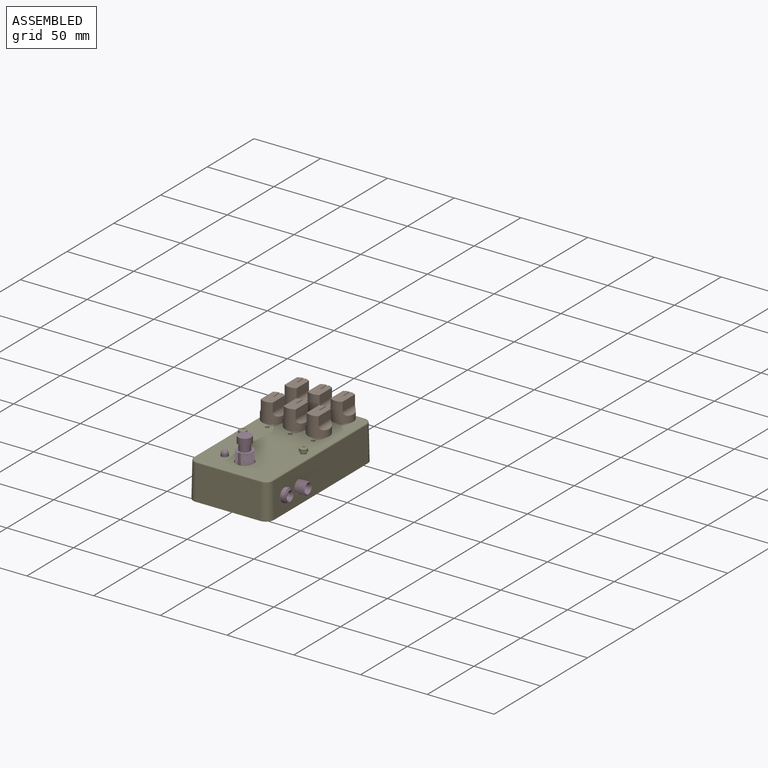
[diagram: assembled view]
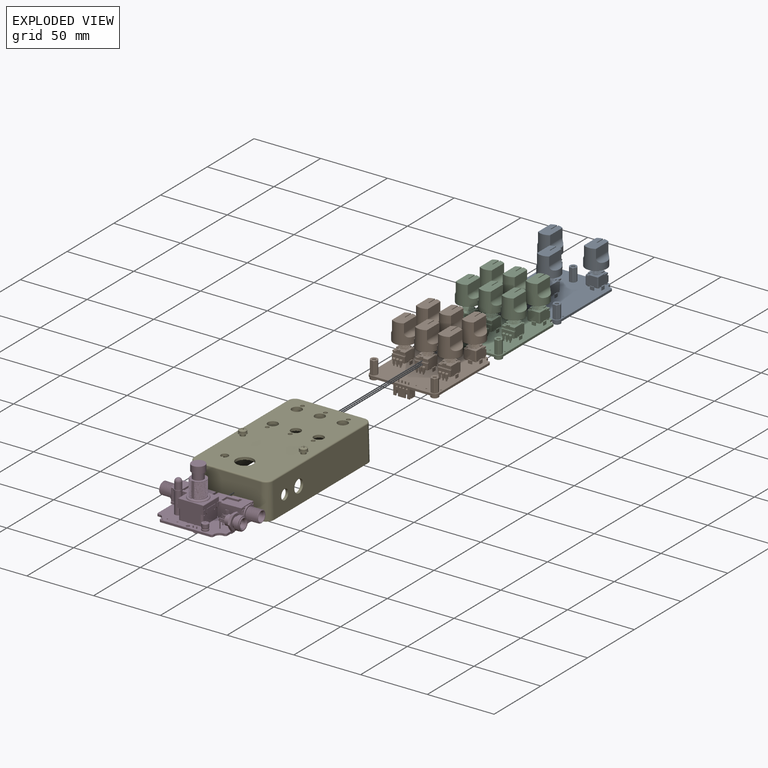
[diagram: exploded view]
GUIDED TOUR — FREECAD ASSEMBLY "BaseRaw"

This assembly has 5 components, labeled P0..P4 below (a component is one placed body or linked part; the same part can appear more than once), held together by 0 modeled joints plus 7 derived contact edges. A joint is a constraint between two components; its type names the relative motion it leaves free:
  CONTACT — a derived adjacency edge — the two components touch in the source model (clearance under 2% of the assembly's diagonal); it is measured from the geometry, not a modeled constraint.
Axis/direction vectors are unit vectors and 'through' points are millimeter coordinates, both in the assembly's world frame.

MATES
  1. CONTACT "contact_0_1": P0 <-> P1, contact direction (0.000, -1.000, 0.000) through (23.27, 47.41, 15.00) mm (derived from contact, not a modeled constraint)
  2. CONTACT "contact_0_2": P0 <-> P2, contact direction (0.000, -1.000, 0.000) through (24.33, -7.71, 13.40) mm (derived from contact, not a modeled constraint)
  3. CONTACT "contact_0_4": P0 <-> P4, contact direction (0.000, -1.000, 0.000) through (-21.89, 47.98, 24.97) mm (derived from contact, not a modeled constraint)
  4. CONTACT "contact_1_2": P1 <-> P2, contact direction (0.000, 1.000, 0.000) through (-24.00, 47.30, 13.40) mm (derived from contact, not a modeled constraint)
  5. CONTACT "contact_1_4": P1 <-> P4, contact direction (0.000, -1.000, 0.000) through (-2.08, 13.22, 25.00) mm (derived from contact, not a modeled constraint)
  6. CONTACT "contact_2_4": P2 <-> P4, contact direction (0.000, -1.000, 0.000) through (-19.58, 39.19, 24.99) mm (derived from contact, not a modeled constraint)
  7. CONTACT "contact_3_4": P3 <-> P4, contact direction (0.000, 1.000, 0.000) through (27.98, -34.65, 12.30) mm (derived from contact, not a modeled constraint)

ASSEMBLY ORDER
  1. P4 — the base component [order heuristic]
  2. P0 [order heuristic]
  3. P1 [order heuristic]
  4. P2 [order heuristic]
  5. P3 [order heuristic]
Order-tag legend:
  [order heuristic] — this assembly is geometrically interlocked (no collision-free removal order exists), so components are listed in mate-graph order; insertion feasibility is not verified.

Of the 5 components, 2 carry a construction recipe — the FreeCAD feature program (sketches with constraints, then the solid features that consume them) that regenerates the part from scratch, quoted from this document or from the linked companion document it references; the rest are supplied as boundary geometry only. The tour below walks the components in assembly order: each is shown spotlighted twice — in the assembled view, then in the exploded view, where a leader line traces a displaced component back to its assembled socket (components that stay in place when exploded have no leader line; saturated green if recipe-attached, orange if geometry-only; every other component desaturated gray) — followed by its recipe or geometry summary and the mates that hold it.
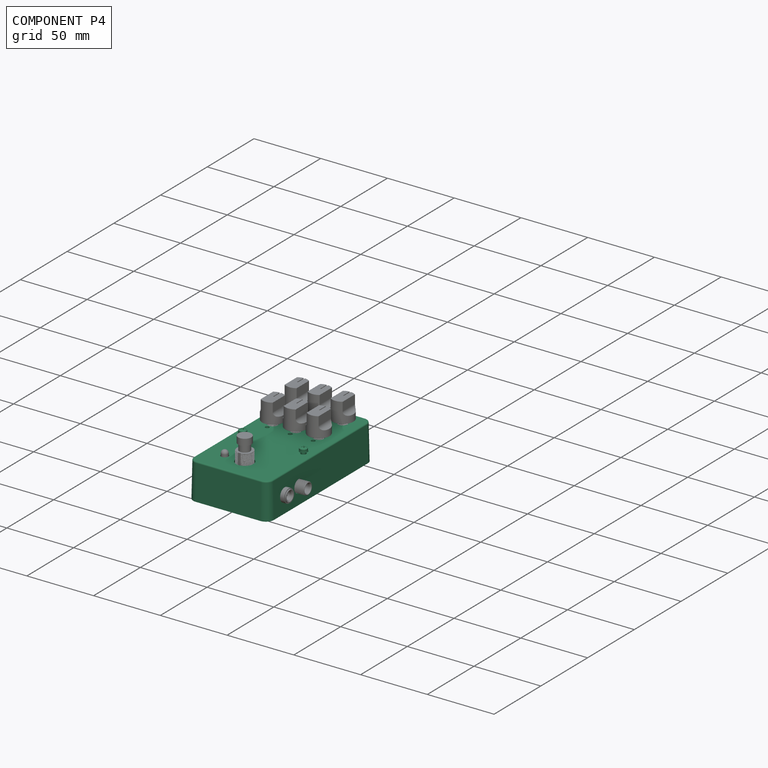
[diagram: component P4 — assembled]
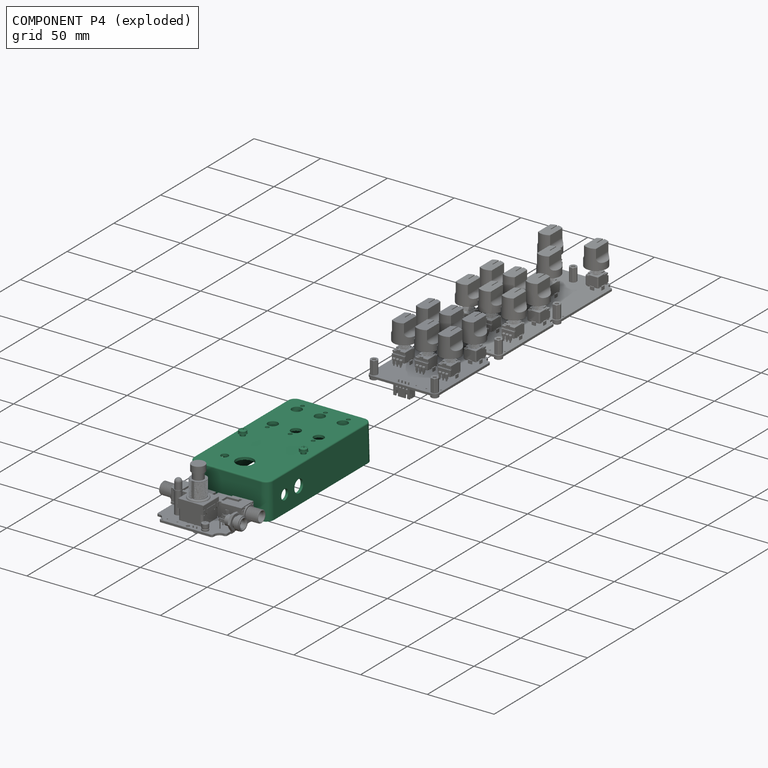
[diagram: component P4 — exploded]
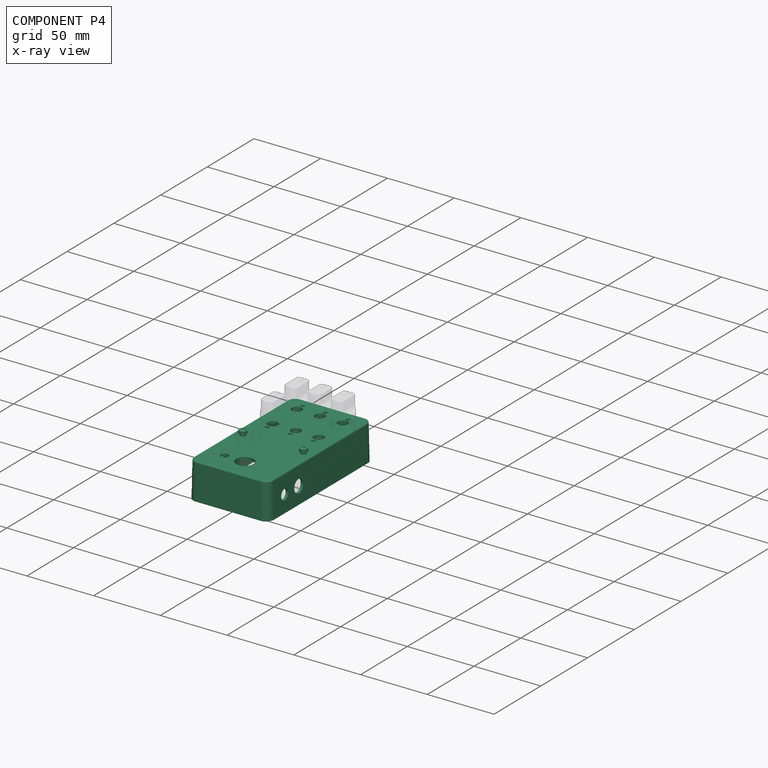
[diagram: component P4 — x-ray view]
COMPONENT P4 — recipe-attached ("Case_1590B", modeled in this document).
Held by: resting contact with P0 (derived edge); resting contact with P1 (derived edge); resting contact with P2 (derived edge); resting contact with P3 (derived edge).
Construction recipe (the document's own serialized feature program — sketch geometry with constraints, then the solid features built on it; lengths are millimeters unless a unit is written):

FEATURE [PartDesign::FeatureBase] BaseFeature
  BaseFeature = -> Part__Feature006
FEATURE [Sketcher::SketchObject] Sketch001
  FullyConstrained = true
  MapMode = 5
  Placement = pos=(0,0,-25) rot=(0,0,1;0rad)
  Support = -> [BaseFeature]
  sketch-geometry (4):
    g0: LineSegment StartX=0 StartY=-20 StartZ=0 EndX=45 EndY=-20 EndZ=0
    g1: LineSegment StartX=45 StartY=-20 StartZ=0 EndX=45 EndY=20 EndZ=0
    g2: LineSegment StartX=45 StartY=20 StartZ=0 EndX=0 EndY=20 EndZ=0
    g3: LineSegment StartX=0 StartY=20 StartZ=0 EndX=0 EndY=-20 EndZ=0
  constraints (11):
    c: Coincident(g0,g1)
    c: Coincident(g1,g2)
    c: Coincident(g2,g3)
    c: Coincident(g3,g0)
    c: Horizontal(g0)
    c: Horizontal(g2)
    c: Vertical(g3)
    c: PointOnObject(g2,g-2)
    c: Symmetric(g1,g0,g-1)
    c: DistanceX(g2,g2) = 45
    c: DistanceY(g1,g1) = 40
FEATURE [PartDesign::Pocket] Pocket  label="RemoveText"
  BaseFeature = -> BaseFeature
  Direction = (0,0,-1)
  Length = 5
  Length2 = 5
  Profile = -> Sketch001
  ReferenceAxis = -> Sketch001 [N_Axis]
  Refine = true
  Reversed = true
  Type = 0
FEATURE [Sketcher::SketchObject] Sketch005
  ExternalGeometry = -> [Pocket]
  FullyConstrained = true
  MapMode = 5
  Placement = pos=(0,0,-27) rot=(1,0,0;3.14159rad)
  Support = -> [Pocket]
  sketch-geometry (2):
    g0: Circle CenterX=-38.3 CenterY=0 CenterZ=0 NormalX=0 NormalY=0 NormalZ=1 AngleXU=0 Radius=6.5
    g1: Circle CenterX=-38.3 CenterY=15 CenterZ=0 NormalX=0 NormalY=0 NormalZ=1 AngleXU=0 Radius=2.75
  constraints (6):
    c: PointOnObject(g0,g-1)
    c: Diameter(g0) = 13
    c: DistanceX(g-3,g0) = 15.75
    c: Diameter(g1) = 5.5
    c: Vertical(g0,g1)
    c: DistanceY(g0,g1) = 15
FEATURE [PartDesign::Pocket] Pocket001  label="FootswitchLed"
  BaseFeature = -> Pocket
  Direction = (0,0,1)
  Length = 5
  Length2 = 5
  Profile = -> Sketch005
  ReferenceAxis = -> Sketch005 [N_Axis]
  Refine = true
  Type = 1
FEATURE [Sketcher::SketchObject] Sketch006
  ExternalGeometry = -> [Pocket001]
  FullyConstrained = true
  MapMode = 5
  Placement = pos=(0,-30.2356,-0.659743) rot=(1,0,0;1.59261rad)
  Support = -> [Pocket001]
  sketch-geometry (1):
    g0: Circle CenterX=-23.3 CenterY=-11.888 CenterZ=0 NormalX=0 NormalY=0 NormalZ=1 AngleXU=0 Radius=4.75
  constraints (3):
    c: Diameter(g0) = 9.5
    c: DistanceX(g-3,g0) = 15
    c: DistanceY(g0,g-1) = 11.888
FEATURE [PartDesign::Pocket] Pocket002  label="Output"
  BaseFeature = -> Pocket001
  Direction = (0,0.999762,0.0218149)
  Length = 5
  Length2 = 5
  Profile = -> Sketch006
  ReferenceAxis = -> Sketch006 [N_Axis]
  Refine = true
  Type = 0
FEATURE [PartDesign::Mirrored] Mirrored002  label="Input"
  BaseFeature = -> Pocket002
  MirrorPlane = -> XZ_Plane008
  Originals = -> [Pocket002]
  Refine = true
FEATURE [Sketcher::SketchObject] Sketch007
  ExternalGeometry = -> [Mirrored002]
  FullyConstrained = true
  MapMode = 5
  Placement = pos=(0,30.2356,-0.659743) rot=(0,0.714778,0.699352;3.14159rad)
  Support = -> [Mirrored002]
  sketch-geometry (1):
    g0: Circle CenterX=38.3 CenterY=-11.888 CenterZ=0 NormalX=0 NormalY=0 NormalZ=1 AngleXU=0 Radius=3.75
  constraints (3):
    c: Vertical(g0,g-3)
    c: DistanceY(g0,g-1) = 11.888
    c: Diameter(g0) = 7.5
FEATURE [PartDesign::Pocket] Pocket003  label="Power"
  BaseFeature = -> Mirrored002
  Direction = (0,-0.999762,0.0218149)
  Length = 5
  Length2 = 5
  Profile = -> Sketch007
  ReferenceAxis = -> Sketch007 [N_Axis]
  Refine = true
  Type = 0
FEATURE [Sketcher::SketchObject] Sketch017
  ExternalGeometry = -> [Pocket003]
  FullyConstrained = true
  MapMode = 5
  Placement = pos=(0,0,-27) rot=(1,0,0;3.14159rad)
  Support = -> [Pocket003]
  sketch-geometry (22):
    g0: Circle CenterX=16.39 CenterY=0 CenterZ=0 NormalX=0 NormalY=0 NormalZ=1 AngleXU=0 Radius=3.75
    g1: Circle CenterX=42.03 CenterY=17.2 CenterZ=0 NormalX=0 NormalY=0 NormalZ=1 AngleXU=0 Radius=3.75
    g2: Circle CenterX=42.03 CenterY=-17.2 CenterZ=0 NormalX=0 NormalY=0 NormalZ=1 AngleXU=0 Radius=3.75
    g3: Circle CenterX=16.39 CenterY=-17.2 CenterZ=0 NormalX=0 NormalY=0 NormalZ=1 AngleXU=0 Radius=3.1
    g4: LineSegment StartX=51.795 StartY=17.5 StartZ=0 EndX=51.795 EndY=-17.5 EndZ=0
    g5: Circle CenterX=10.39 CenterY=0 CenterZ=0 NormalX=0 NormalY=0 NormalZ=1 AngleXU=0 Radius=1.5
    g6: Circle CenterX=48.03 CenterY=17.2 CenterZ=0 NormalX=0 NormalY=0 NormalZ=1 AngleXU=0 Radius=1.5
    g7: Circle CenterX=48.03 CenterY=-17.2 CenterZ=0 NormalX=0 NormalY=0 NormalZ=1 AngleXU=0 Radius=1.5
    g8: LineSegment StartX=42.03 StartY=17.2 StartZ=0 EndX=48.03 EndY=17.2 EndZ=0
    g9: LineSegment StartX=42.03 StartY=-17.2 StartZ=0 EndX=48.03 EndY=-17.2 EndZ=0
    g10: LineSegment StartX=10.39 StartY=0 StartZ=0 EndX=16.39 EndY=0 EndZ=0
    g11: Circle CenterX=42.03 CenterY=0 CenterZ=0 NormalX=0 NormalY=0 NormalZ=1 AngleXU=0 Radius=3.75
    g12: Circle CenterX=48.03 CenterY=0 CenterZ=0 NormalX=0 NormalY=0 NormalZ=1 AngleXU=0 Radius=1.5
    g13: Circle CenterX=16.39 CenterY=17.2 CenterZ=0 NormalX=0 NormalY=0 NormalZ=1 AngleXU=0 Radius=3.75
    g14: Circle CenterX=10.39 CenterY=17.2 CenterZ=0 NormalX=0 NormalY=0 NormalZ=1 AngleXU=0 Radius=1.5
    g15: Circle CenterX=16.39 CenterY=-17.2 CenterZ=0 NormalX=0 NormalY=0 NormalZ=1 AngleXU=0 Radius=3.75
    g16: Circle CenterX=10.39 CenterY=-17.2 CenterZ=0 NormalX=0 NormalY=0 NormalZ=1 AngleXU=0 Radius=1.5
    g17: Circle CenterX=16.39 CenterY=17.2 CenterZ=0 NormalX=0 NormalY=0 NormalZ=1 AngleXU=0 Radius=3.1
    g18: Circle CenterX=42.03 CenterY=17.2 CenterZ=0 NormalX=0 NormalY=0 NormalZ=1 AngleXU=0 Radius=3.1
    g19: Circle CenterX=42.03 CenterY=0 CenterZ=0 NormalX=0 NormalY=0 NormalZ=1 AngleXU=0 Radius=3.1
    g20: Circle CenterX=16.39 CenterY=0 CenterZ=0 NormalX=0 NormalY=0 NormalZ=1 AngleXU=0 Radius=3.1
    g21: Circle CenterX=42.03 CenterY=-17.2 CenterZ=0 NormalX=0 NormalY=0 NormalZ=1 AngleXU=0 Radius=3.1
  constraints (56):
    c: PointOnObject(g0,g-1)
    c: Equal(g0,g1)
    c: Equal(g1,g2)
    c: Symmetric(g2,g1,g-1)
    c: Diameter(g3) = 6.2
    c: Diameter(g0) = 7.5
    c: DistanceY(g-1,g1) = 17.2
    c: Symmetric(g4,g4,g-1)
    c: DistanceY(g4,g4) = 35
    c: DistanceX(g-1,g4) = 51.795
    c: DistanceX(g1,g4) = 9.765
    c: DistanceX(g0,g4) = 35.405
    c: PointOnObject(g5,g-1)
    c: Equal(g5,g7)
    c: Equal(g7,g6)
    c: Horizontal(g6,g1)
    c: Horizontal(g7,g2)
    c: Coincident(g8,g1)
    c: Coincident(g8,g6)
    c: Coincident(g9,g2)
    c: Coincident(g9,g7)
    c: Coincident(g10,g5)
    c: Coincident(g10,g0)
    c: Diameter(g5) = 3
    c: PointOnObject(g11,g-1)
    c: PointOnObject(g12,g-1)
    c: Equal(g5,g12)
    c: Equal(g0,g11)
    c: Coincident(g17,g13)
    c: Coincident(g18,g1)
    c: Coincident(g19,g11)
    c: Coincident(g20,g0)
    c: Coincident(g21,g2)
    c: Coincident(g3,g15)
    c: Horizontal(g16,g15)
    c: Horizontal(g2,g16)
    c: Horizontal(g13,g14)
    c: Horizontal(g1,g14)
    c: Equal(g14,g6)
    c: Equal(g13,g0)
    c: Equal(g15,g0)
    c: Equal(g3,g20)
    c: Equal(g20,g17)
    c: Equal(g17,g18)
    c: Equal(g18,g19)
    c: Equal(g19,g21)
    c: Vertical(g0,g15)
    c: Vertical(g16,g5)
    c: Vertical(g14,g5)
    c: Vertical(g13,g0)
    c: Vertical(g11,g1)
    c: Vertical(g12,g6)
    c: Equal(g5,g16)
    c: DistanceX(g9,g9) = 6
    c: Vertical(g6,g7)
    c: DistanceX(g10,g10) = 6
FEATURE [PartDesign::Pocket] Pocket007  label="Controls"
  BaseFeature = -> Pocket003
  Direction = (0,0,1)
  Length = 5
  Length2 = 5
  Profile = -> Sketch017
  ReferenceAxis = -> Sketch017 [N_Axis]
  Refine = true
  Type = 0
FEATURE [PartDesign::Plane] DatumPlane004  label="CaseTop"
  AttachmentOffset = pos=(0,0,27) rot=(0,0,1;0rad)
  Length = 128.893
  MapMode = 5
  Placement = pos=(0,0,-27) rot=(0,1,0;3.14159rad)
  ResizeMode = 0
  Support = -> [XY_Plane008]
  Width = 76.9927
FEATURE [Sketcher::SketchObject] Sketch019
  FullyConstrained = true
  MapMode = 5
  Placement = pos=(0,0,-27) rot=(0,1,0;3.14159rad)
  Support = -> [DatumPlane004]
  sketch-geometry (3):
    g0: Circle CenterX=7.95 CenterY=22.75 CenterZ=0 NormalX=0 NormalY=0 NormalZ=1 AngleXU=0 Radius=2
    g1: Circle CenterX=7.95 CenterY=-22.75 CenterZ=0 NormalX=0 NormalY=0 NormalZ=1 AngleXU=0 Radius=2
    g2: Circle CenterX=-42.035 CenterY=0 CenterZ=0 NormalX=0 NormalY=0 NormalZ=1 AngleXU=0 Radius=2
  constraints (8):
    c: Symmetric(g1,g0,g-1)
    c: Diameter(g0) = 4
    c: DistanceY(g-1,g0) = 22.75
    c: DistanceX(g-1,g0) = 7.95
    c: Equal(g1,g0)
    c: PointOnObject(g2,g-1)
    c: DistanceX(g2,g0) = 49.985
    c: Equal(g0,g2)
FEATURE [PartDesign::Pocket] Pocket008  label="Mounts"
  BaseFeature = -> Pocket007
  Direction = (0,0,1)
  Length = 5
  Length2 = 5
  Profile = -> Sketch019
  ReferenceAxis = -> Sketch019 [N_Axis]
  Refine = true
  Type = 0
FEATURE [PartDesign::Body] Body001  label="Case"
  BaseFeature = -> Part__Feature006
  Group = -> [BaseFeature,Sketch001,Pocket,Sketch005,Pocket001,Sketch006,Pocket002,Mirrored002,Sketch007,Pocket003,Sketch017,Pocket007,DatumPlane004,Sketch019,Pocket008]
  Origin = -> Origin008
  Placement = pos=(0,0,0) rot=(-1,0,0;1.5708rad)
  Tip = -> Pocket008
FEATURE [Sketcher::SketchObject] Sketch060  label="Bot"
  FullyConstrained = true
  MapMode = 5
  Placement = pos=(0,0,0) rot=(1,0,0;1.5708rad)
  Support = -> [XZ_Plane076]
  sketch-geometry (10):
    g0: LineSegment StartX=-56.3 StartY=-30.35 StartZ=0 EndX=-56.3 EndY=30.35 EndZ=0
    g1: LineSegment StartX=-56.3 StartY=30.35 StartZ=0 EndX=56.3 EndY=30.35 EndZ=0
    g2: LineSegment StartX=56.3 StartY=30.35 StartZ=0 EndX=56.3 EndY=-30.35 EndZ=0
    g3: LineSegment StartX=56.3 StartY=-30.35 StartZ=0 EndX=-56.3 EndY=-30.35 EndZ=0
    g4: GeomPoint X=0 Y=0 Z=0
    g5: LineSegment StartX=-57.3 StartY=-31.35 StartZ=0 EndX=-57.3 EndY=31.35 EndZ=0
    g6: LineSegment StartX=-57.3 StartY=31.35 StartZ=0 EndX=57.3 EndY=31.35 EndZ=0
    g7: LineSegment StartX=57.3 StartY=31.35 StartZ=0 EndX=57.3 EndY=-31.35 EndZ=0
    g8: LineSegment StartX=57.3 StartY=-31.35 StartZ=0 EndX=-57.3 EndY=-31.35 EndZ=0
    g9: GeomPoint X=0 Y=0 Z=0
  constraints (24):
    c: Coincident(g0,g1)
    c: Coincident(g1,g2)
    c: Coincident(g2,g3)
    c: Coincident(g3,g0)
    c: Horizontal(g1)
    c: Horizontal(g3)
    c: Vertical(g0)
    c: Vertical(g2)
    c: Symmetric(g1,g0,g4)
    c: Coincident(g4,g-1)
    c: Coincident(g5,g6)
    c: Coincident(g6,g7)
    c: Coincident(g7,g8)
    c: Coincident(g8,g5)
    c: Horizontal(g6)
    c: Horizontal(g8)
    c: Vertical(g5)
    c: Vertical(g7)
    c: Symmetric(g6,g5,g9)
    c: Coincident(g9,g4)
    c: DistanceY(g2,g2) = 60.7
    c: DistanceX(g3,g3) = 112.6
    c: DistanceY(g7,g2) = 1
    c: DistanceX(g2,g7) = 1
FEATURE [PartDesign::Plane] DatumPlane014  label="Top"
  AttachmentOffset = pos=(0,0,28) rot=(0,0,1;0rad)
  Length = 131.553
  MapMode = 5
  Placement = pos=(0,-28,-6.2e-15) rot=(1,0,0;1.5708rad)
  ResizeMode = 0
  Support = -> [XZ_Plane076]
  Width = 79.6534
FEATURE [Sketcher::SketchObject] Sketch061  label="Top001"
  FullyConstrained = true
  MapMode = 5
  Placement = pos=(0,-28,-6.2e-15) rot=(1,0,0;1.5708rad)
  Support = -> [DatumPlane014]
  sketch-geometry (10):
    g0: LineSegment StartX=-55.689 StartY=-29.739 StartZ=0 EndX=-55.689 EndY=29.739 EndZ=0
    g1: LineSegment StartX=-55.689 StartY=29.739 StartZ=0 EndX=55.689 EndY=29.739 EndZ=0
    g2: LineSegment StartX=55.689 StartY=29.739 StartZ=0 EndX=55.689 EndY=-29.739 EndZ=0
    g3: LineSegment StartX=55.689 StartY=-29.739 StartZ=0 EndX=-55.689 EndY=-29.739 EndZ=0
    g4: GeomPoint X=0 Y=0 Z=0
    g5: LineSegment StartX=-56.689 StartY=-30.739 StartZ=0 EndX=-56.689 EndY=30.739 EndZ=0
    g6: LineSegment StartX=-56.689 StartY=30.739 StartZ=0 EndX=56.689 EndY=30.739 EndZ=0
    g7: LineSegment StartX=56.689 StartY=30.739 StartZ=0 EndX=56.689 EndY=-30.739 EndZ=0
    g8: LineSegment StartX=56.689 StartY=-30.739 StartZ=0 EndX=-56.689 EndY=-30.739 EndZ=0
    g9: GeomPoint X=0 Y=0 Z=0
  constraints (24):
    c: Coincident(g0,g1)
    c: Coincident(g1,g2)
    c: Coincident(g2,g3)
    c: Coincident(g3,g0)
    c: Horizontal(g1)
    c: Horizontal(g3)
    c: Vertical(g0)
    c: Vertical(g2)
    c: Symmetric(g1,g0,g4)
    c: Coincident(g4,g-1)
    c: Coincident(g5,g6)
    c: Coincident(g6,g7)
    c: Coincident(g7,g8)
    c: Coincident(g8,g5)
    c: Horizontal(g6)
    c: Horizontal(g8)
    c: Vertical(g5)
    c: Vertical(g7)
    c: Symmetric(g6,g5,g9)
    c: Coincident(g9,g4)
    c: DistanceY(g7,g2) = 1
    c: DistanceX(g2,g7) = 1
    c: DistanceY(g2,g2) = 59.478
    c: DistanceX(g1,g1) = 111.378
FEATURE [PartDesign::AdditiveLoft] AdditiveLoft
  Closed = false
  Placement = pos=(0,0,0) rot=(1,0,0;1.5708rad)
  Profile = -> Sketch060
  Refine = true
  Ruled = false
  Sections = -> [Sketch061]
FEATURE [PartDesign::Plane] DatumPlane015
  AttachmentOffset = pos=(0,0,27.1) rot=(0,0,1;0rad)
  Length = 131.553
  MapMode = 5
  Placement = pos=(0,-27.1,-6e-15) rot=(1,0,0;1.5708rad)
  ResizeMode = 0
  Support = -> [XZ_Plane076]
  Width = 79.6534
FEATURE [Sketcher::SketchObject] Sketch062
  FullyConstrained = true
  MapMode = 5
  Placement = pos=(0,-27.1,-6e-15) rot=(1,0,0;1.5708rad)
  Support = -> [DatumPlane015]
  sketch-geometry (5):
    g0: LineSegment StartX=-56.3 StartY=-30.35 StartZ=0 EndX=-56.3 EndY=30.35 EndZ=0
    g1: LineSegment StartX=-56.3 StartY=30.35 StartZ=0 EndX=56.3 EndY=30.35 EndZ=0
    g2: LineSegment StartX=56.3 StartY=30.35 StartZ=0 EndX=56.3 EndY=-30.35 EndZ=0
    g3: LineSegment StartX=56.3 StartY=-30.35 StartZ=0 EndX=-56.3 EndY=-30.35 EndZ=0
    g4: GeomPoint X=0 Y=0 Z=0
  constraints (12):
    c: Coincident(g0,g1)
    c: Coincident(g1,g2)
    c: Coincident(g2,g3)
    c: Coincident(g3,g0)
    c: Horizontal(g1)
    c: Horizontal(g3)
    c: Vertical(g0)
    c: Vertical(g2)
    c: Symmetric(g1,g0,g4)
    c: Coincident(g4,g-1)
    c: DistanceY(g2,g2) = 60.7
    c: DistanceX(g1,g1) = 112.6
FEATURE [PartDesign::Pad] Pad022
  BaseFeature = -> AdditiveLoft
  Direction = (0,-1,-2e-16)
  Length = 0.9
  Length2 = 10
  Placement = pos=(0,0,0) rot=(1,0,0;1.5708rad)
  Profile = -> Sketch062
  ReferenceAxis = -> Sketch062 [N_Axis]
  Refine = true
  Type = 0
FEATURE [Sketcher::SketchObject] Sketch063
  FullyConstrained = true
  MapMode = 5
  Placement = pos=(0,-28,1.29e-14) rot=(1,0,0;1.5708rad)
  Support = -> [Pad022]
  sketch-geometry (16):
    g0: Circle CenterX=16.39 CenterY=0 CenterZ=0 NormalX=0 NormalY=0 NormalZ=1 AngleXU=0 Radius=0.75
    g1: Circle CenterX=10.39 CenterY=0 CenterZ=0 NormalX=0 NormalY=0 NormalZ=1 AngleXU=0 Radius=0.75
    g2: Circle CenterX=10.39 CenterY=-17.2 CenterZ=0 NormalX=0 NormalY=0 NormalZ=1 AngleXU=0 Radius=0.75
    g3: Circle CenterX=48.03 CenterY=-17.2 CenterZ=0 NormalX=0 NormalY=0 NormalZ=1 AngleXU=0 Radius=0.75
    g4: Circle CenterX=48.03 CenterY=0 CenterZ=0 NormalX=0 NormalY=0 NormalZ=1 AngleXU=0 Radius=0.75
    g5: Circle CenterX=48.03 CenterY=17.2 CenterZ=0 NormalX=0 NormalY=0 NormalZ=1 AngleXU=0 Radius=0.75
    g6: Circle CenterX=10.39 CenterY=17.2 CenterZ=0 NormalX=0 NormalY=0 NormalZ=1 AngleXU=0 Radius=0.75
    g7: Circle CenterX=16.39 CenterY=17.2 CenterZ=0 NormalX=0 NormalY=0 NormalZ=1 AngleXU=0 Radius=0.75
    g8: Circle CenterX=42.03 CenterY=17.2 CenterZ=0 NormalX=0 NormalY=0 NormalZ=1 AngleXU=0 Radius=0.75
    g9: Circle CenterX=42.03 CenterY=0 CenterZ=0 NormalX=0 NormalY=0 NormalZ=1 AngleXU=0 Radius=0.75
    g10: Circle CenterX=42.03 CenterY=-17.2 CenterZ=0 NormalX=0 NormalY=0 NormalZ=1 AngleXU=0 Radius=0.75
    g11: Circle CenterX=16.39 CenterY=-17.2 CenterZ=0 NormalX=0 NormalY=0 NormalZ=1 AngleXU=0 Radius=0.75
    g12: Circle CenterX=-7.95 CenterY=22.75 CenterZ=0 NormalX=0 NormalY=0 NormalZ=1 AngleXU=0 Radius=0.75
    g13: Circle CenterX=-7.95 CenterY=-22.75 CenterZ=0 NormalX=0 NormalY=0 NormalZ=1 AngleXU=0 Radius=0.75
    g14: Circle CenterX=-38.3 CenterY=0 CenterZ=0 NormalX=0 NormalY=0 NormalZ=1 AngleXU=0 Radius=0.75
    g15: Circle CenterX=-38.3 CenterY=15 CenterZ=0 NormalX=0 NormalY=0 NormalZ=1 AngleXU=0 Radius=0.75
  constraints (46):
    c: PointOnObject(g0,g-1)
    c: PointOnObject(g1,g-1)
    c: PointOnObject(g4,g-1)
    c: PointOnObject(g9,g-1)
    c: Horizontal(g7,g6)
    c: Horizontal(g6,g8)
    c: Horizontal(g8,g5)
    c: Horizontal(g11,g2)
    c: Horizontal(g2,g10)
    c: Horizontal(g10,g3)
    c: Vertical(g3,g4)
    c: Vertical(g4,g5)
    c: Vertical(g8,g9)
    c: Vertical(g9,g10)
    c: Vertical(g2,g1)
    c: Vertical(g1,g6)
    c: Vertical(g11,g0)
    c: Equal(g7,g6)
    c: Equal(g6,g8)
    c: Equal(g8,g5)
    c: Equal(g5,g0)
    c: Equal(g0,g1)
    c: Equal(g1,g2)
    c: Equal(g2,g3)
    c: Equal(g3,g4)
    c: Equal(g4,g9)
    c: Equal(g9,g10)
    c: Equal(g10,g11)
    c: DistanceX(g-1,g0) = 16.39
    c: DistanceX(g9,g4) = 6
    c: DistanceX(g-1,g10) = 42.03
    c: Symmetric(g7,g11,g-1)
    c: DistanceY(g-1,g7) = 17.2
    c: PointOnObject(g14,g-1)
    c: Symmetric(g12,g13,g-1)
    c: Equal(g14,g15)
    c: Equal(g15,g12)
    c: Equal(g12,g13)
    c: Equal(g13,g0)
    c: DistanceX(g12,g-1) = 7.95
    c: DistanceY(g-1,g12) = 22.75
    c: Vertical(g15,g14)
    c: DistanceX(g14,g-1) = 38.3
    c: DistanceY(g14,g15) = 15
    c: Diameter(g14) = 1.5
    c: DistanceX(g1,g0) = 6
FEATURE [PartDesign::Pocket] Pocket036
  BaseFeature = -> Pad022
  Direction = (0,1,-4e-16)
  Length = 5
  Length2 = 5
  Placement = pos=(0,0,0) rot=(1,0,0;1.5708rad)
  Profile = -> Sketch063
  ReferenceAxis = -> Sketch063 [N_Axis]
  Refine = true
  Type = 0
FEATURE [Sketcher::SketchObject] Sketch064
  FullyConstrained = true
  MapMode = 5
  Support = -> [XY_Plane076]
  sketch-geometry (1):
    g0: Circle CenterX=-23.3 CenterY=-12.55 CenterZ=0 NormalX=0 NormalY=0 NormalZ=1 AngleXU=0 Radius=0.5
  constraints (3):
    c: Diameter(g0) = 1
    c: DistanceX(g0,g-1) = 23.3
    c: DistanceY(g0,g-1) = 12.55
FEATURE [PartDesign::Pocket] Pocket037
  BaseFeature = -> Pocket036
  Direction = (0,0,-1)
  Length = 5
  Length2 = 5
  Midplane = true
  Placement = pos=(0,0,0) rot=(1,0,0;1.5708rad)
  Profile = -> Sketch064
  ReferenceAxis = -> Sketch064 [N_Axis]
  Refine = true
  Type = 1
FEATURE [Sketcher::SketchObject] Sketch065
  FullyConstrained = true
  MapMode = 5
  Support = -> [XY_Plane076]
  sketch-geometry (1):
    g0: Circle CenterX=-38.3 CenterY=-12.55 CenterZ=0 NormalX=0 NormalY=0 NormalZ=1 AngleXU=0 Radius=0.5
  constraints (3):
    c: DistanceY(g0,g-1) = 12.55
    c: DistanceX(g0,g-1) = 38.3
    c: Diameter(g0) = 1
FEATURE [PartDesign::Pocket] Pocket038
  BaseFeature = -> Pocket037
  Direction = (0,0,-1)
  Length = 5
  Length2 = 5
  Placement = pos=(0,0,0) rot=(1,0,0;1.5708rad)
  Profile = -> Sketch065
  ReferenceAxis = -> Sketch065 [N_Axis]
  Refine = true
  Type = 1
FEATURE [PartDesign::Chamfer] Chamfer006
  Angle = 45
  Base = -> Pocket038 [Face10,Face2,Face5,Face3,Face4,Face1]
  BaseFeature = -> Pocket038
  ChamferType = 0
  FlipDirection = false
  Placement = pos=(0,0,0) rot=(1,0,0;1.5708rad)
  Refine = true
  Size = 0.49
  Size2 = 1
  SupportTransform = false
  UseAllEdges = false
FEATURE [PartDesign::Body] Body017  label="DrillGuideFrame"
  Group = -> [Sketch060,DatumPlane014,Sketch061,AdditiveLoft,DatumPlane015,Sketch062,Pad022,Sketch063,Pocket036,Sketch064,Pocket037,Sketch065,Pocket038,Chamfer006]
  Origin = -> Origin076
  Tip = -> Chamfer006
FEATURE [Sketcher::SketchObject] Sketch066
  FullyConstrained = true
  MapMode = 5
  Placement = pos=(0,0,0) rot=(1,0,0;1.5708rad)
  Support = -> [XZ_Plane077]
  sketch-geometry (2):
    g0: Circle CenterX=0 CenterY=0 CenterZ=0 NormalX=0 NormalY=0 NormalZ=1 AngleXU=0 Radius=3.5
    g1: Circle CenterX=0 CenterY=0 CenterZ=0 NormalX=0 NormalY=0 NormalZ=1 AngleXU=0 Radius=1.75
  constraints (4):
    c: Coincident(g0,g-1)
    c: Diameter(g0) = 7
    c: Coincident(g1,g0)
    c: Diameter(g1) = 3.5
FEATURE [PartDesign::Pad] Pad023
  Direction = (0,-1,2e-16)
  Length = 2
  Length2 = 10
  Placement = pos=(0,0,0) rot=(1,0,0;1.5708rad)
  Profile = -> Sketch066
  ReferenceAxis = -> Sketch066 [N_Axis]
  Refine = true
  Type = 0
FEATURE [PartDesign::Body] Body018  label="Filler"
  Group = -> [Sketch066,Pad023]
  Origin = -> Origin077
  Placement = pos=(42.025,-25,0) rot=(0,0,1;0rad)
  Tip = -> Pad023
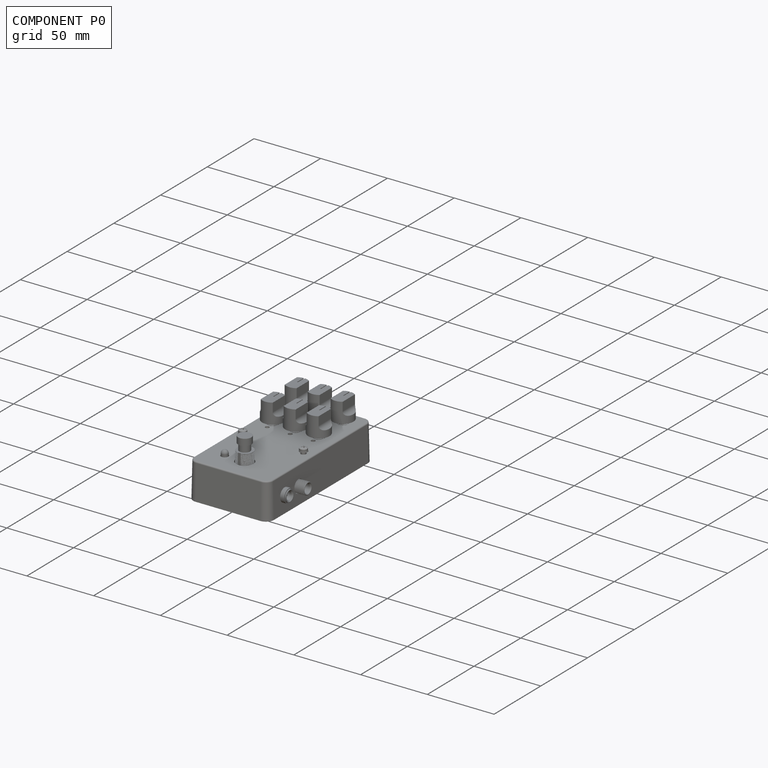
[diagram: component P0 — assembled]
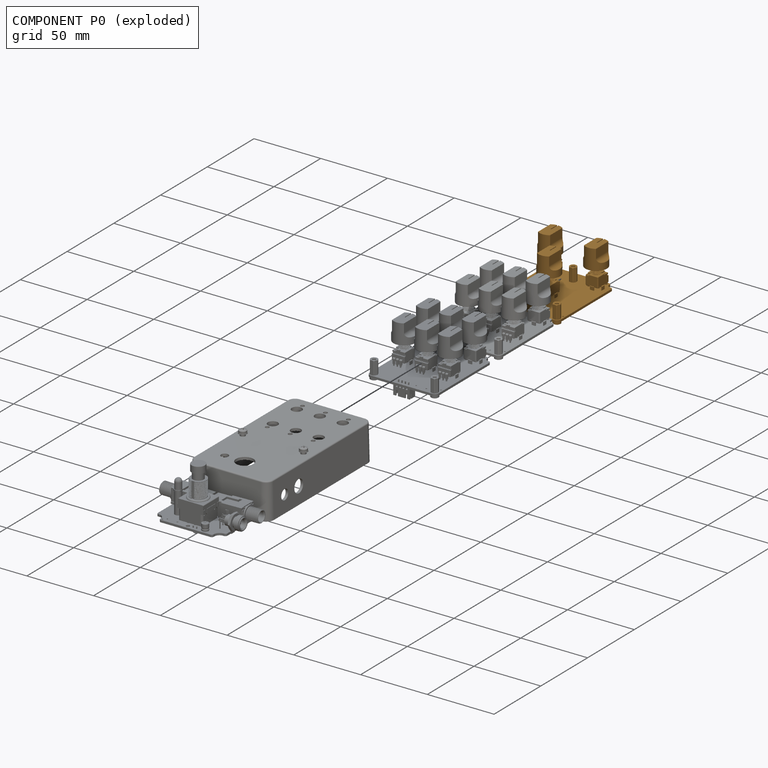
[diagram: component P0 — exploded]
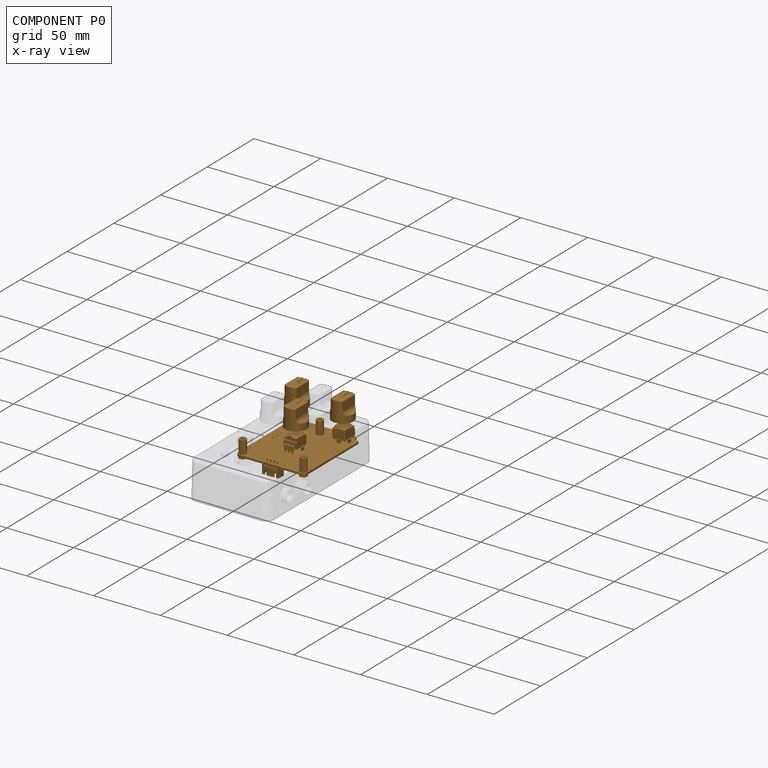
[diagram: component P0 — x-ray view]
COMPONENT P0 — geometry summary ("Upper_404"; no construction recipe available for this part):
  bounding box: 63.0 x 52.0 x 38.6 mm
  tessellated surface: 156,268 triangles
  volume: 16125 mm^3 (13% of its bounding box)
  symmetry: mirror-symmetric across its x mid-plane
Held by: resting contact with P1 (derived edge); resting contact with P2 (derived edge); resting contact with P4 (derived edge).
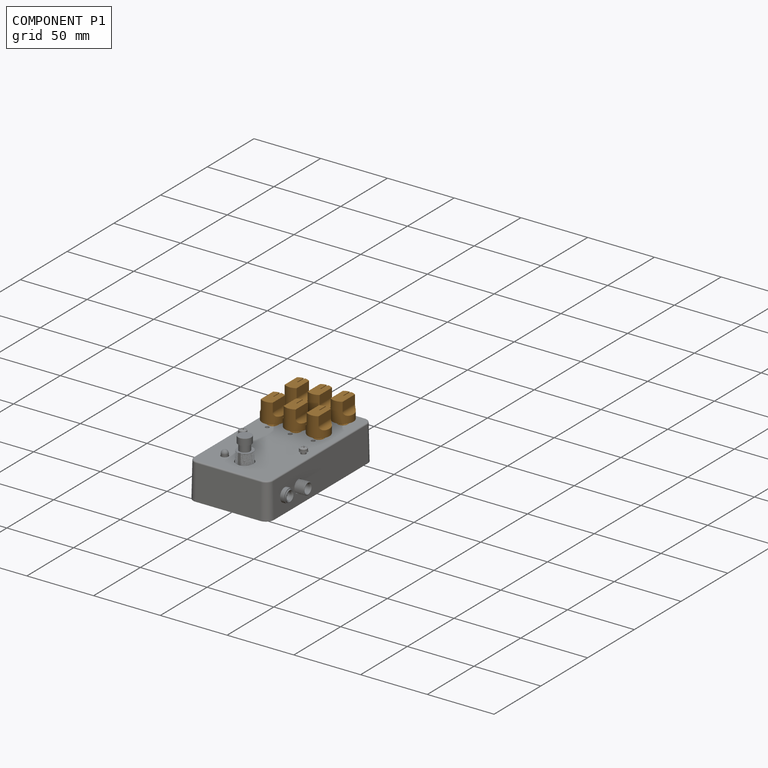
[diagram: component P1 — assembled]
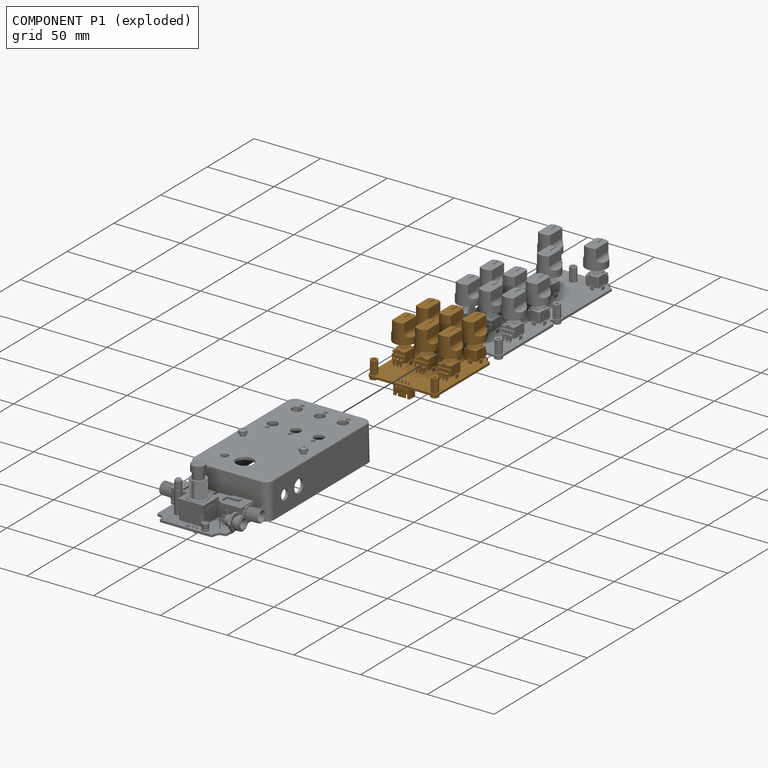
[diagram: component P1 — exploded]
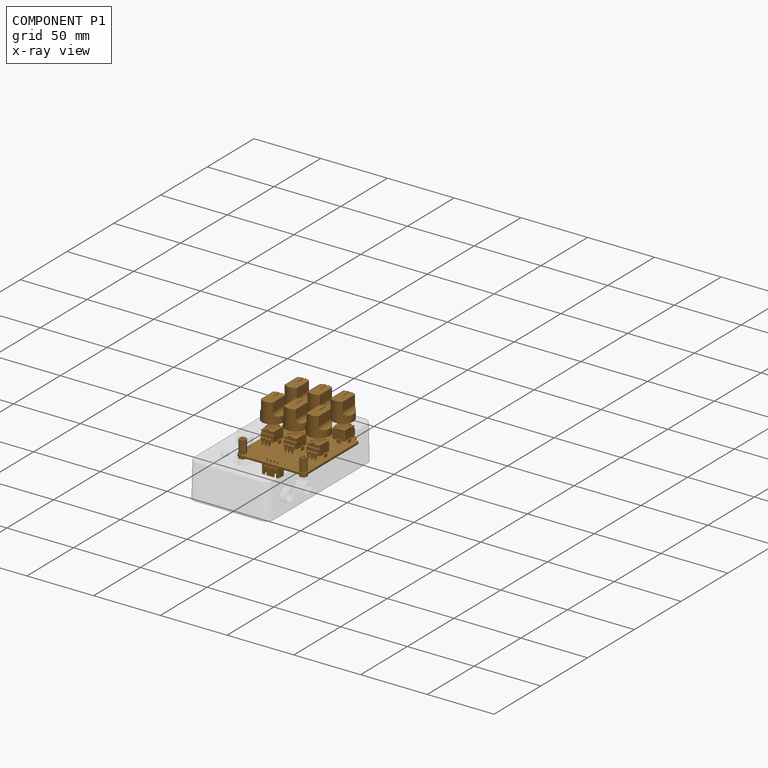
[diagram: component P1 — x-ray view]
COMPONENT P1 — geometry summary ("Upper_TOP"; no construction recipe available for this part):
  bounding box: 63.0 x 52.0 x 38.6 mm
  tessellated surface: 312,304 triangles
  volume: 26279 mm^3 (21% of its bounding box)
Held by: resting contact with P0 (derived edge); resting contact with P2 (derived edge); resting contact with P4 (derived edge).
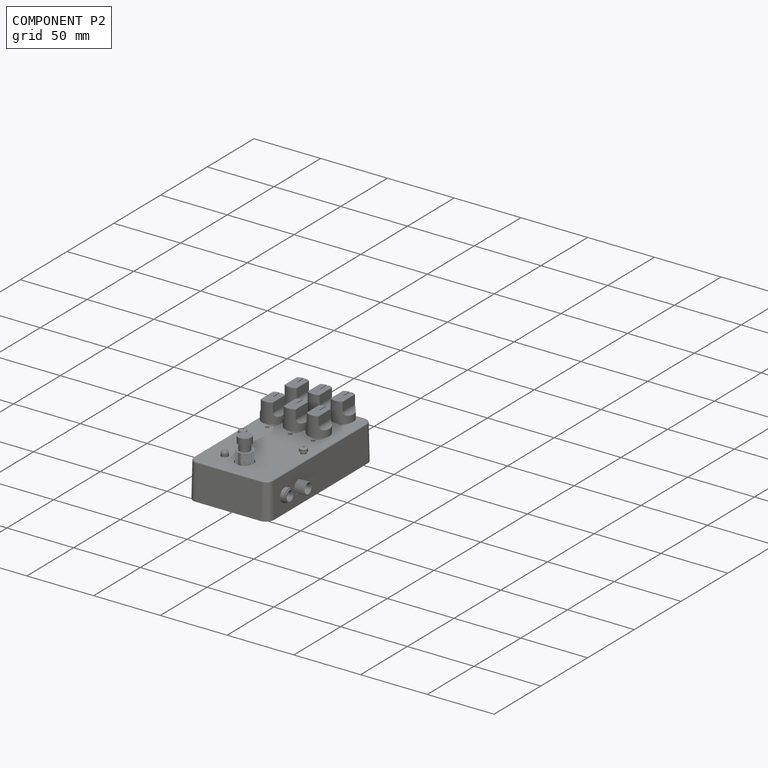
[diagram: component P2 — assembled]
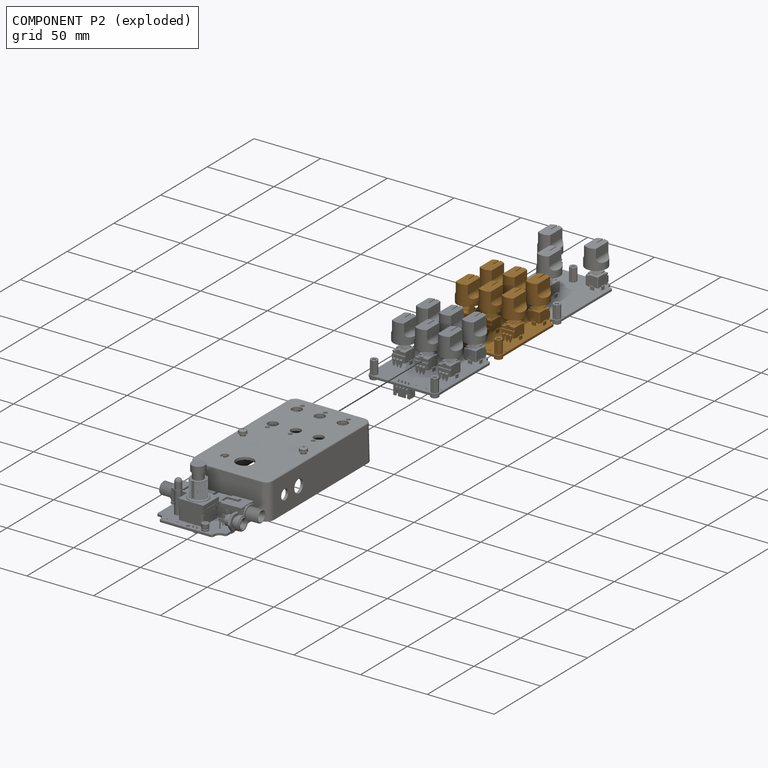
[diagram: component P2 — exploded]
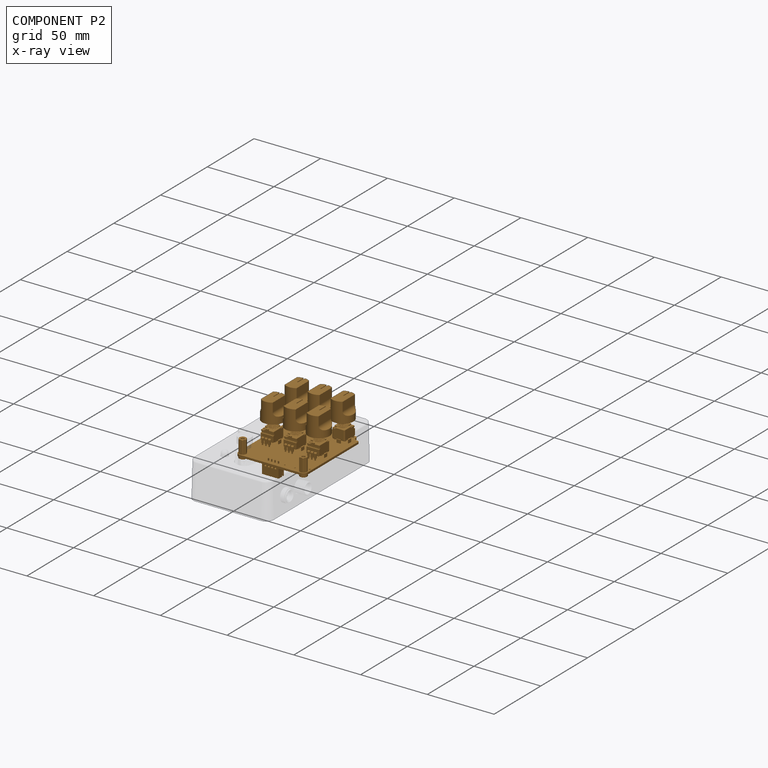
[diagram: component P2 — x-ray view]
COMPONENT P2 — geometry summary ("Upper_Raw"; no construction recipe available for this part):
  bounding box: 63.0 x 52.0 x 38.6 mm
  tessellated surface: 263,068 triangles
  volume: 25773 mm^3 (20% of its bounding box)
  symmetry: mirror-symmetric across its x mid-plane
Held by: resting contact with P0 (derived edge); resting contact with P1 (derived edge); resting contact with P4 (derived edge).
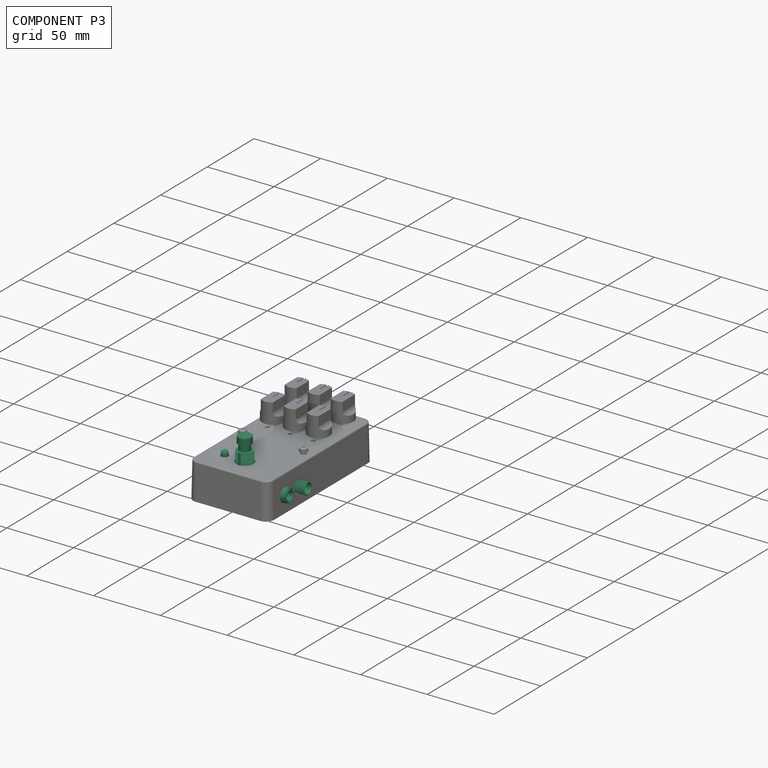
[diagram: component P3 — assembled]
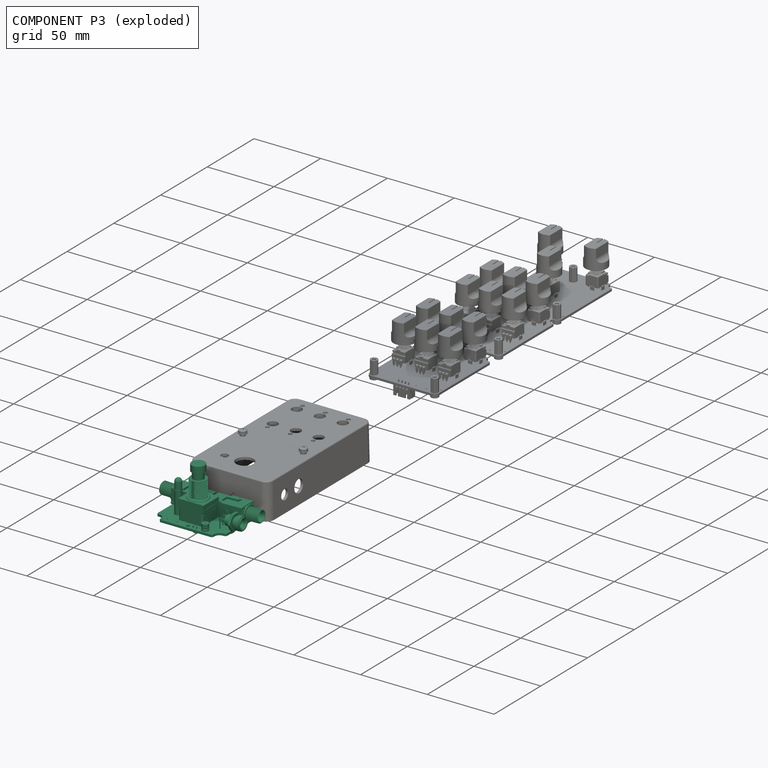
[diagram: component P3 — exploded]
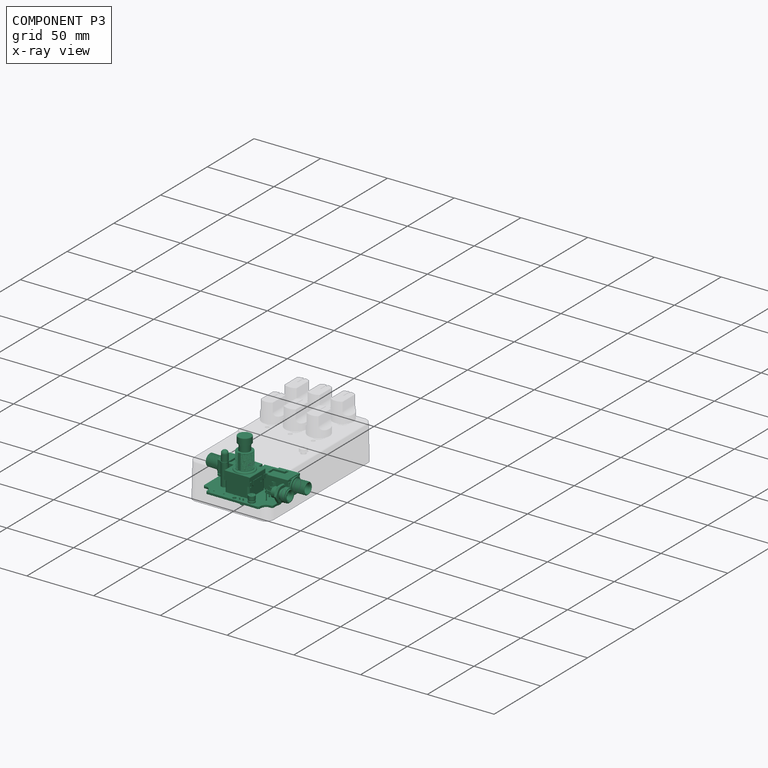
[diagram: component P3 — x-ray view]
COMPONENT P3 — recipe-attached ("Lower", modeled in this document).
Held by: resting contact with P4 (derived edge).
Construction recipe (the document's own serialized feature program — sketch geometry with constraints, then the solid features built on it; lengths are millimeters unless a unit is written):

FEATURE [Sketcher::SketchObject] Sketch020
  FullyConstrained = true
  MapMode = 5
  Support = -> [XY_Plane]
  sketch-geometry (3):
    g0: Circle CenterX=0 CenterY=0 CenterZ=0 NormalX=0 NormalY=0 NormalZ=1 AngleXU=0 Radius=2.5
    g1: Circle CenterX=-1.27 CenterY=0 CenterZ=0 NormalX=0 NormalY=0 NormalZ=1 AngleXU=0 Radius=0.5
    g2: Circle CenterX=1.27 CenterY=0 CenterZ=0 NormalX=0 NormalY=0 NormalZ=1 AngleXU=0 Radius=0.5
  constraints (7):
    c: Coincident(g0,g-1)
    c: Diameter(g0) = 5
    c: PointOnObject(g1,g-1)
    c: Equal(g2,g1)
    c: Symmetric(g1,g2,g-2)
    c: DistanceX(g1,g2) = 2.54
    c: Diameter(g1) = 1
FEATURE [PartDesign::Pad] Pad009
  Direction = (0,0,1)
  Length = 16
  Length2 = 10
  Profile = -> Sketch020
  ReferenceAxis = -> Sketch020 [N_Axis]
  Refine = true
  Type = 0
FEATURE [PartDesign::Body] Body007  label="LEDSpacer"
  Group = -> [Sketch020,Pad009]
  Origin = -> Origin
  Placement = pos=(15.0299,0.0044,-17.6211) rot=(0,0,1;0rad)
  Tip = -> Pad009
PROVENANCE & LICENSES
Assembly and component geometry: a FreeCAD (.FCStd) document from a public repository crawl; components, placements and joints were extracted with FreeCAD and each solid tessellated.
Construction recipes: the document's own serialized feature recipes (and, for linked parts, the recipes of companion documents from the same project).
License: cc-by-sa-4.0.
Joints: native FreeCAD joints and A2plus constraints are mapped to standard mate types; edges marked 'derived from contact' connect touching components and are measured from the geometry, not modeled.
Verification: 2 of this assembly's 5 components carry a construction recipe (2 from this document itself); the rest are geometry-only. Every component's tessellation passed the extraction mesh gates (mesh-volume checksum against the B-rep where available, bounding-box inflation <= 2%).
Renders: orthographic iso camera (az 35 / el 25); the floor grid conveys scale (grid pitch printed in each image; no ruler). In the exploded view each component is displaced by its stored offset vector: the offsets alone carry the explosion direction (mate normal/axis signs are not orientation cues and do not encode it), and separation distances are assigned per mate-chain, not proportionally to assembly-order depth.
